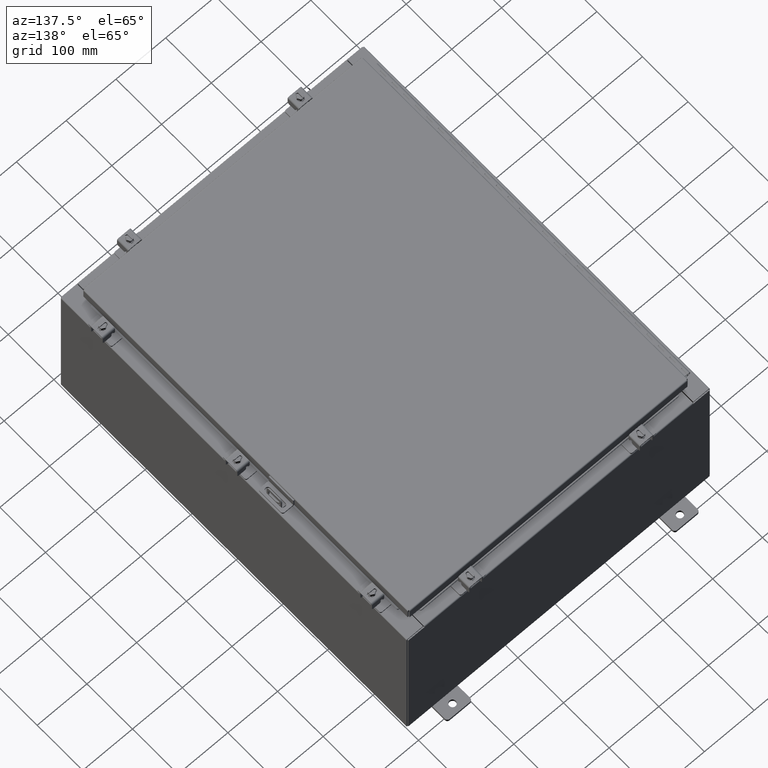
[diagram: clean part render]
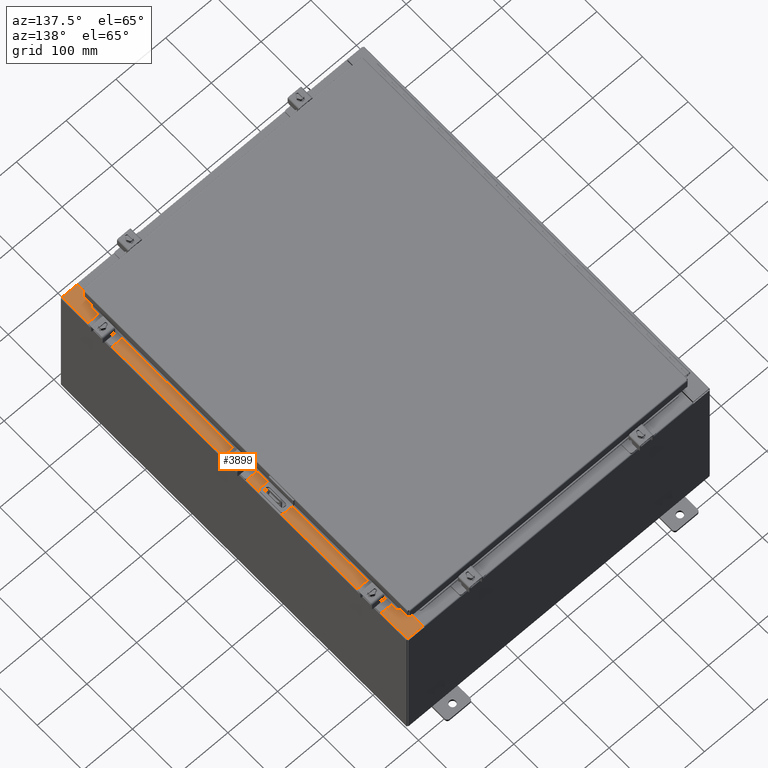
[diagram: same view with one face highlighted and labeled with its STEP entity id]
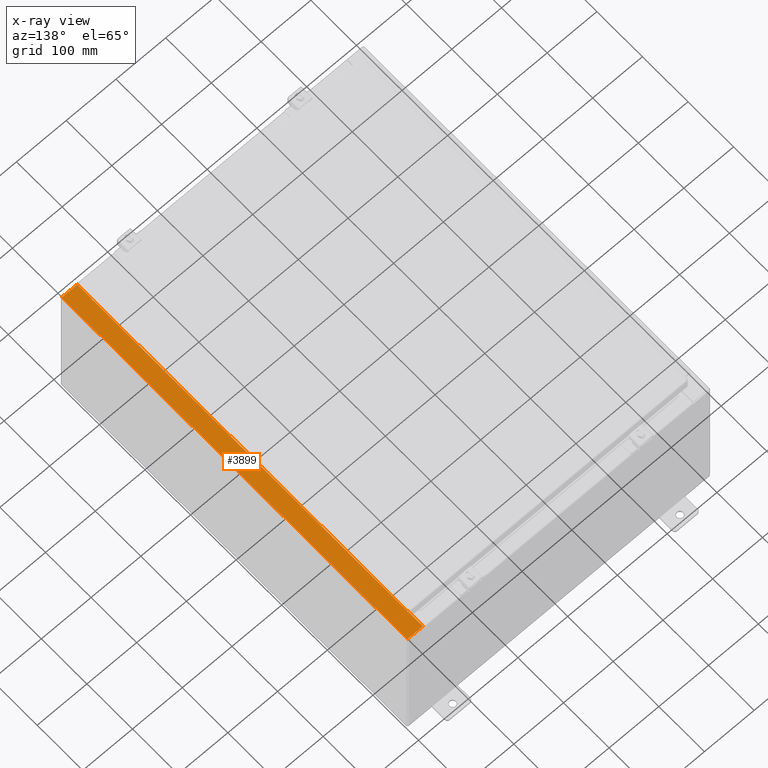
[diagram: x-ray of the same camera — body ghosted, the highlighted face saturated]
A machine part, auxiliary view. The second image highlights one B-rep face of the part: STEP entity #3899.
The next image is the same camera in x-ray: the body ghosted, the highlighted face saturated — about 0% of this face is hidden behind the body in this view.
In plain terms, the highlighted planar face has unit normal (-0, 0, -1).
Its self-contained STEP definition (entity closure, byte-faithful):
#1152 = CARTESIAN_POINT ( 'NONE',  ( 10.75005000000004100, -13.59375000000000000, 11.92530000000000900 ) ) ;
#1675 = VECTOR ( 'NONE', #3832, 39.37007874015748100 ) ;
#1714 = VECTOR ( 'NONE', #36335, 39.37007874015748100 ) ;
#2071 = VERTEX_POINT ( 'NONE', #12960 ) ;
#2556 = CARTESIAN_POINT ( 'NONE',  ( 10.75005000000004100, 13.63109999999999800, 11.92530000000000900 ) ) ;
#2966 = VECTOR ( 'NONE', #27673, 39.37007874015748100 ) ;
#3098 = CARTESIAN_POINT ( 'NONE',  ( 8.532114493236847900E-014, 14.92529999999999800, 11.92530000000008500 ) ) ;
#3240 = VECTOR ( 'NONE', #34959, 39.37007874015748100 ) ;
#3376 = LINE ( 'NONE', #33801, #3240 ) ;
#3419 = ORIENTED_EDGE ( 'NONE', *, *, #14628, .F. ) ;
#3832 = DIRECTION ( 'NONE',  ( 0.0000000000000000000, -1.000000000000000000, 0.0000000000000000000 ) ) ;
#3844 = LINE ( 'NONE', #16669, #18759 ) ;
#3899 = ADVANCED_FACE ( 'NONE', ( #28286 ), #20984, .F. ) ;
#4664 = CARTESIAN_POINT ( 'NONE',  ( 10.69970000000003900, -14.92529999999999800, 11.92530000000000900 ) ) ;
#4975 = DIRECTION ( 'NONE',  ( -1.000000000000000000, 0.0000000000000000000, 7.132762385546384700E-015 ) ) ;
#4987 = CARTESIAN_POINT ( 'NONE',  ( 10.69970000000003900, 0.0000000000000000000, 11.92530000000000900 ) ) ;
#5256 = VERTEX_POINT ( 'NONE', #1152 ) ;
#5742 = VERTEX_POINT ( 'NONE', #35254 ) ;
#6034 = DIRECTION ( 'NONE',  ( -1.000000000000000000, 0.0000000000000000000, 7.132762385546384700E-015 ) ) ;
#6540 = LINE ( 'NONE', #11274, #2966 ) ;
#6811 = VERTEX_POINT ( 'NONE', #8232 ) ;
#7116 = DIRECTION ( 'NONE',  ( 1.000000000000000000, 0.0000000000000000000, 0.0000000000000000000 ) ) ;
#7339 = AXIS2_PLACEMENT_3D ( 'NONE', #18801, #18778, #18725 ) ;
#7716 = CARTESIAN_POINT ( 'NONE',  ( 10.71270000000004100, 13.59375000000000000, 11.92530000000000900 ) ) ;
#8211 = VECTOR ( 'NONE', #6034, 39.37007874015748100 ) ;
#8232 = CARTESIAN_POINT ( 'NONE',  ( 10.69970000000003900, 14.92529999999999800, 11.92530000000000900 ) ) ;
#8514 = CARTESIAN_POINT ( 'NONE',  ( 8.532114493236847900E-014, -14.92529999999999800, 11.92530000000008500 ) ) ;
#8688 = VERTEX_POINT ( 'NONE', #23691 ) ;
#9160 = AXIS2_PLACEMENT_3D ( 'NONE', #29040, #33633, #4975 ) ;
#9641 = DIRECTION ( 'NONE',  ( 1.000000000000000000, 0.0000000000000000000, 0.0000000000000000000 ) ) ;
#10225 = DIRECTION ( 'NONE',  ( 1.000000000000000000, 0.0000000000000000000, -7.132762385546384700E-015 ) ) ;
#10512 = EDGE_CURVE ( 'NONE', #5742, #24094, #36284, .T. ) ;
#10552 = VERTEX_POINT ( 'NONE', #2556 ) ;
#10892 = VERTEX_POINT ( 'NONE', #22054 ) ;
#11274 = CARTESIAN_POINT ( 'NONE',  ( 10.69970000000003900, -13.63109999999999800, 11.92530000000000900 ) ) ;
#11707 = ORIENTED_EDGE ( 'NONE', *, *, #33224, .F. ) ;
#11739 = LINE ( 'NONE', #8514, #12223 ) ;
#12067 = CIRCLE ( 'NONE', #7339, 0.01867499999999949400 ) ;
#12127 = DIRECTION ( 'NONE',  ( -1.000000000000000000, 0.0000000000000000000, 0.0000000000000000000 ) ) ;
#12223 = VECTOR ( 'NONE', #10225, 39.37007874015748100 ) ;
#12258 = CARTESIAN_POINT ( 'NONE',  ( 10.75005000000004100, -13.59375000000000000, 11.92530000000000900 ) ) ;
#12960 = CARTESIAN_POINT ( 'NONE',  ( 11.91230000000003700, 14.92529999999999800, 11.92530000000000000 ) ) ;
#13083 = ORIENTED_EDGE ( 'NONE', *, *, #20852, .F. ) ;
#13103 = CARTESIAN_POINT ( 'NONE',  ( 10.75005000000004100, 13.63109999999999800, 11.92530000000000900 ) ) ;
#13289 = ORIENTED_EDGE ( 'NONE', *, *, #15039, .T. ) ;
#14033 = AXIS2_PLACEMENT_3D ( 'NONE', #26535, #35912, #7116 ) ;
#14162 = ORIENTED_EDGE ( 'NONE', *, *, #10512, .T. ) ;
#14351 = CIRCLE ( 'NONE', #14033, 0.01867499999999949400 ) ;
#14472 = ORIENTED_EDGE ( 'NONE', *, *, #34821, .T. ) ;
#14628 = EDGE_CURVE ( 'NONE', #2071, #10892, #3376, .T. ) ;
#15039 = EDGE_CURVE ( 'NONE', #24094, #10892, #11739, .T. ) ;
#15052 = LINE ( 'NONE', #13103, #1714 ) ;
#15327 = LINE ( 'NONE', #7716, #19012 ) ;
#15912 = DIRECTION ( 'NONE',  ( -0.0000000000000000000, 1.000000000000000000, -0.0000000000000000000 ) ) ;
#16343 = VERTEX_POINT ( 'NONE', #33929 ) ;
#16669 = CARTESIAN_POINT ( 'NONE',  ( 10.71270000000004100, -13.59375000000000000, 11.92530000000000900 ) ) ;
#18725 = DIRECTION ( 'NONE',  ( 1.000000000000000000, 0.0000000000000000000, 0.0000000000000000000 ) ) ;
#18759 = VECTOR ( 'NONE', #15912, 39.37007874015748100 ) ;
#18778 = DIRECTION ( 'NONE',  ( 7.132762385546384700E-015, 0.0000000000000000000, 1.000000000000000000 ) ) ;
#18801 = CARTESIAN_POINT ( 'NONE',  ( 10.75005000000004100, -13.61242500000000000, 11.92530000000000900 ) ) ;
#18974 = ORIENTED_EDGE ( 'NONE', *, *, #32438, .F. ) ;
#19012 = VECTOR ( 'NONE', #9641, 39.37007874015748100 ) ;
#19553 = VERTEX_POINT ( 'NONE', #21871 ) ;
#20852 = EDGE_CURVE ( 'NONE', #5742, #25355, #6540, .T. ) ;
#20984 = PLANE ( 'NONE',  #9160 ) ;
#21428 = CARTESIAN_POINT ( 'NONE',  ( 10.75005000000004100, 13.59375000000000000, 11.92530000000000900 ) ) ;
#21871 = CARTESIAN_POINT ( 'NONE',  ( 10.71270000000004100, 13.59375000000000000, 11.92530000000000900 ) ) ;
#22054 = CARTESIAN_POINT ( 'NONE',  ( 11.91230000000003700, -14.92529999999999800, 11.92530000000000000 ) ) ;
#22506 = LINE ( 'NONE', #33661, #25310 ) ;
#23067 = EDGE_CURVE ( 'NONE', #8688, #19553, #3844, .T. ) ;
#23691 = CARTESIAN_POINT ( 'NONE',  ( 10.71270000000004100, -13.59375000000000000, 11.92530000000000900 ) ) ;
#24094 = VERTEX_POINT ( 'NONE', #4664 ) ;
#25310 = VECTOR ( 'NONE', #33205, 39.37007874015748100 ) ;
#25355 = VERTEX_POINT ( 'NONE', #36291 ) ;
#26485 = LINE ( 'NONE', #3098, #8211 ) ;
#26535 = CARTESIAN_POINT ( 'NONE',  ( 10.75005000000004100, 13.61242500000000000, 11.92530000000000900 ) ) ;
#26629 = EDGE_LOOP ( 'NONE', ( #13083, #14162, #13289, #3419, #14472, #27502, #37726, #35152, #27076, #37374, #11707, #18974 ) ) ;
#27076 = ORIENTED_EDGE ( 'NONE', *, *, #30830, .F. ) ;
#27502 = ORIENTED_EDGE ( 'NONE', *, *, #31053, .T. ) ;
#27673 = DIRECTION ( 'NONE',  ( 1.000000000000000000, 0.0000000000000000000, 0.0000000000000000000 ) ) ;
#28286 = FACE_OUTER_BOUND ( 'NONE', #26629, .T. ) ;
#29040 = CARTESIAN_POINT ( 'NONE',  ( 8.532114493236847900E-014, 0.0000000000000000000, 11.92530000000008500 ) ) ;
#30257 = EDGE_CURVE ( 'NONE', #35803, #10552, #14351, .T. ) ;
#30830 = EDGE_CURVE ( 'NONE', #19553, #35803, #15327, .T. ) ;
#31053 = EDGE_CURVE ( 'NONE', #6811, #16343, #22506, .T. ) ;
#32438 = EDGE_CURVE ( 'NONE', #25355, #5256, #12067, .T. ) ;
#33205 = DIRECTION ( 'NONE',  ( 0.0000000000000000000, -1.000000000000000000, 0.0000000000000000000 ) ) ;
#33224 = EDGE_CURVE ( 'NONE', #5256, #8688, #36929, .T. ) ;
#33633 = DIRECTION ( 'NONE',  ( -7.132762385546384700E-015, 0.0000000000000000000, -1.000000000000000000 ) ) ;
#33661 = CARTESIAN_POINT ( 'NONE',  ( 10.69970000000003900, 0.0000000000000000000, 11.92530000000000900 ) ) ;
#33801 = CARTESIAN_POINT ( 'NONE',  ( 11.91230000000003700, -14.92529999999999800, 11.92530000000000000 ) ) ;
#33929 = CARTESIAN_POINT ( 'NONE',  ( 10.69970000000003900, 13.63109999999999800, 11.92530000000000900 ) ) ;
#34821 = EDGE_CURVE ( 'NONE', #2071, #6811, #26485, .T. ) ;
#34959 = DIRECTION ( 'NONE',  ( -0.0000000000000000000, -1.000000000000000000, -0.0000000000000000000 ) ) ;
#35152 = ORIENTED_EDGE ( 'NONE', *, *, #30257, .F. ) ;
#35254 = CARTESIAN_POINT ( 'NONE',  ( 10.69970000000003900, -13.63109999999999800, 11.92530000000000900 ) ) ;
#35803 = VERTEX_POINT ( 'NONE', #21428 ) ;
#35912 = DIRECTION ( 'NONE',  ( 7.132762385546384700E-015, 0.0000000000000000000, 1.000000000000000000 ) ) ;
#36284 = LINE ( 'NONE', #4987, #1675 ) ;
#36291 = CARTESIAN_POINT ( 'NONE',  ( 10.75005000000004100, -13.63109999999999800, 11.92530000000000900 ) ) ;
#36335 = DIRECTION ( 'NONE',  ( -1.000000000000000000, 0.0000000000000000000, 0.0000000000000000000 ) ) ;
#36735 = EDGE_CURVE ( 'NONE', #10552, #16343, #15052, .T. ) ;
#36929 = LINE ( 'NONE', #12258, #37963 ) ;
#37374 = ORIENTED_EDGE ( 'NONE', *, *, #23067, .F. ) ;
#37726 = ORIENTED_EDGE ( 'NONE', *, *, #36735, .F. ) ;
#37963 = VECTOR ( 'NONE', #12127, 39.37007874015748100 ) ;